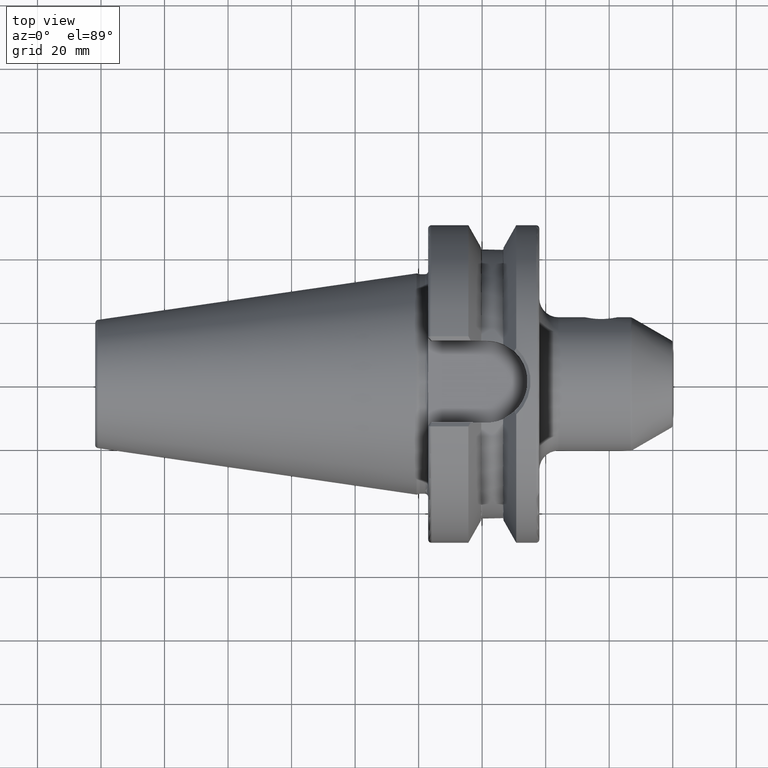
[diagram: clean part render]
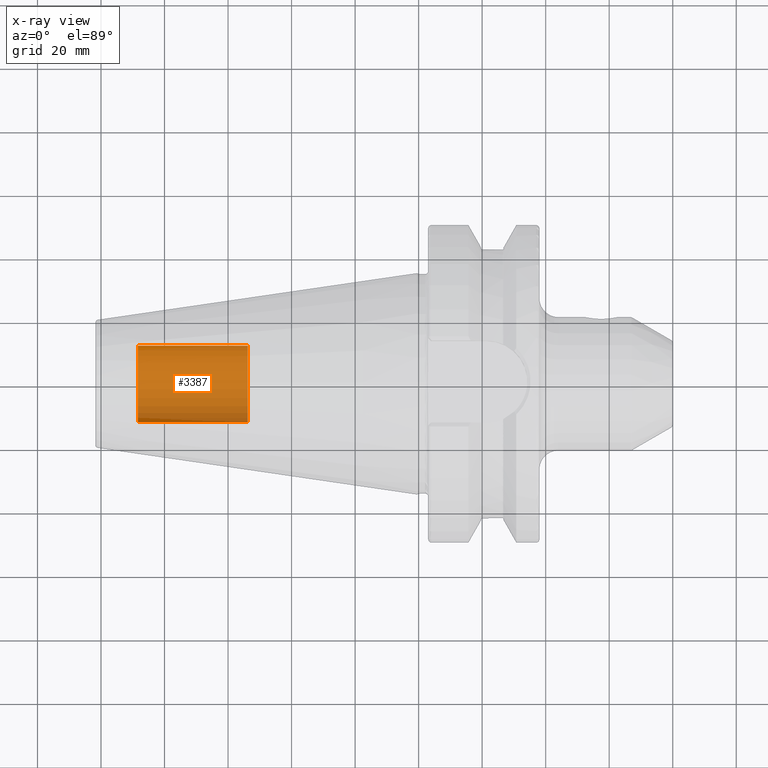
[diagram: x-ray — body ghosted, one internal face saturated and labeled with its STEP entity id]
A machine part, top view, then the same camera in x-ray: the body is ghosted and one INTERNAL B-rep face — a face not visible from any outside direction — is saturated and labeled: STEP entity #3387.
In plain terms, the highlighted cylindrical surface (partial cylindrical patch) has radius 12.0032 mm, axis along (1, 0, 0).
Its self-contained STEP definition (entity closure, byte-faithful):
#3322=CARTESIAN_POINT('',(-8.835E1,0.E0,0.E0));
#3323=DIRECTION('',(-1.E0,0.E0,0.E0));
#3324=DIRECTION('',(0.E0,1.E0,0.E0));
#3325=AXIS2_PLACEMENT_3D('',#3322,#3323,#3324);
#3327=DIRECTION('',(1.E0,0.E0,0.E0));
#3328=VECTOR('',#3327,3.455E1);
#3329=CARTESIAN_POINT('',(-8.835E1,-1.200325E1,0.E0));
#3330=LINE('',#3329,#3328);
#3336=DIRECTION('',(1.E0,0.E0,0.E0));
#3337=VECTOR('',#3336,3.455E1);
#3338=CARTESIAN_POINT('',(-8.835E1,1.200325E1,0.E0));
#3339=LINE('',#3338,#3337);
#3345=CARTESIAN_POINT('',(-5.38E1,0.E0,0.E0));
#3346=DIRECTION('',(1.E0,0.E0,0.E0));
#3347=DIRECTION('',(0.E0,-1.E0,0.E0));
#3348=AXIS2_PLACEMENT_3D('',#3345,#3346,#3347);
#3360=CARTESIAN_POINT('',(-8.835E1,1.200325E1,0.E0));
#3361=CARTESIAN_POINT('',(-8.835E1,-1.200325E1,0.E0));
#3362=VERTEX_POINT('',#3360);
#3363=VERTEX_POINT('',#3361);
#3364=CARTESIAN_POINT('',(-5.38E1,1.200325E1,0.E0));
#3365=CARTESIAN_POINT('',(-5.38E1,-1.200325E1,0.E0));
#3366=VERTEX_POINT('',#3364);
#3367=VERTEX_POINT('',#3365);
#3372=CARTESIAN_POINT('',(-8.835E1,0.E0,0.E0));
#3373=DIRECTION('',(1.E0,0.E0,0.E0));
#3374=DIRECTION('',(0.E0,1.E0,0.E0));
#3375=AXIS2_PLACEMENT_3D('',#3372,#3373,#3374);
#3376=CYLINDRICAL_SURFACE('',#3375,1.200325E1);
#3378=ORIENTED_EDGE('',*,*,#3377,.T.);
#3380=ORIENTED_EDGE('',*,*,#3379,.T.);
#3382=ORIENTED_EDGE('',*,*,#3381,.T.);
#3384=ORIENTED_EDGE('',*,*,#3383,.F.);
#3385=EDGE_LOOP('',(#3378,#3380,#3382,#3384));
#3386=FACE_OUTER_BOUND('',#3385,.F.);
#3387=ADVANCED_FACE('',(#3386),#3376,.T.);
#3326=CIRCLE('',#3325,1.200325E1);
#3349=CIRCLE('',#3348,1.200325E1);
#3377=EDGE_CURVE('',#3362,#3363,#3326,.T.);
#3379=EDGE_CURVE('',#3363,#3367,#3330,.T.);
#3381=EDGE_CURVE('',#3367,#3366,#3349,.T.);
#3383=EDGE_CURVE('',#3362,#3366,#3339,.T.);